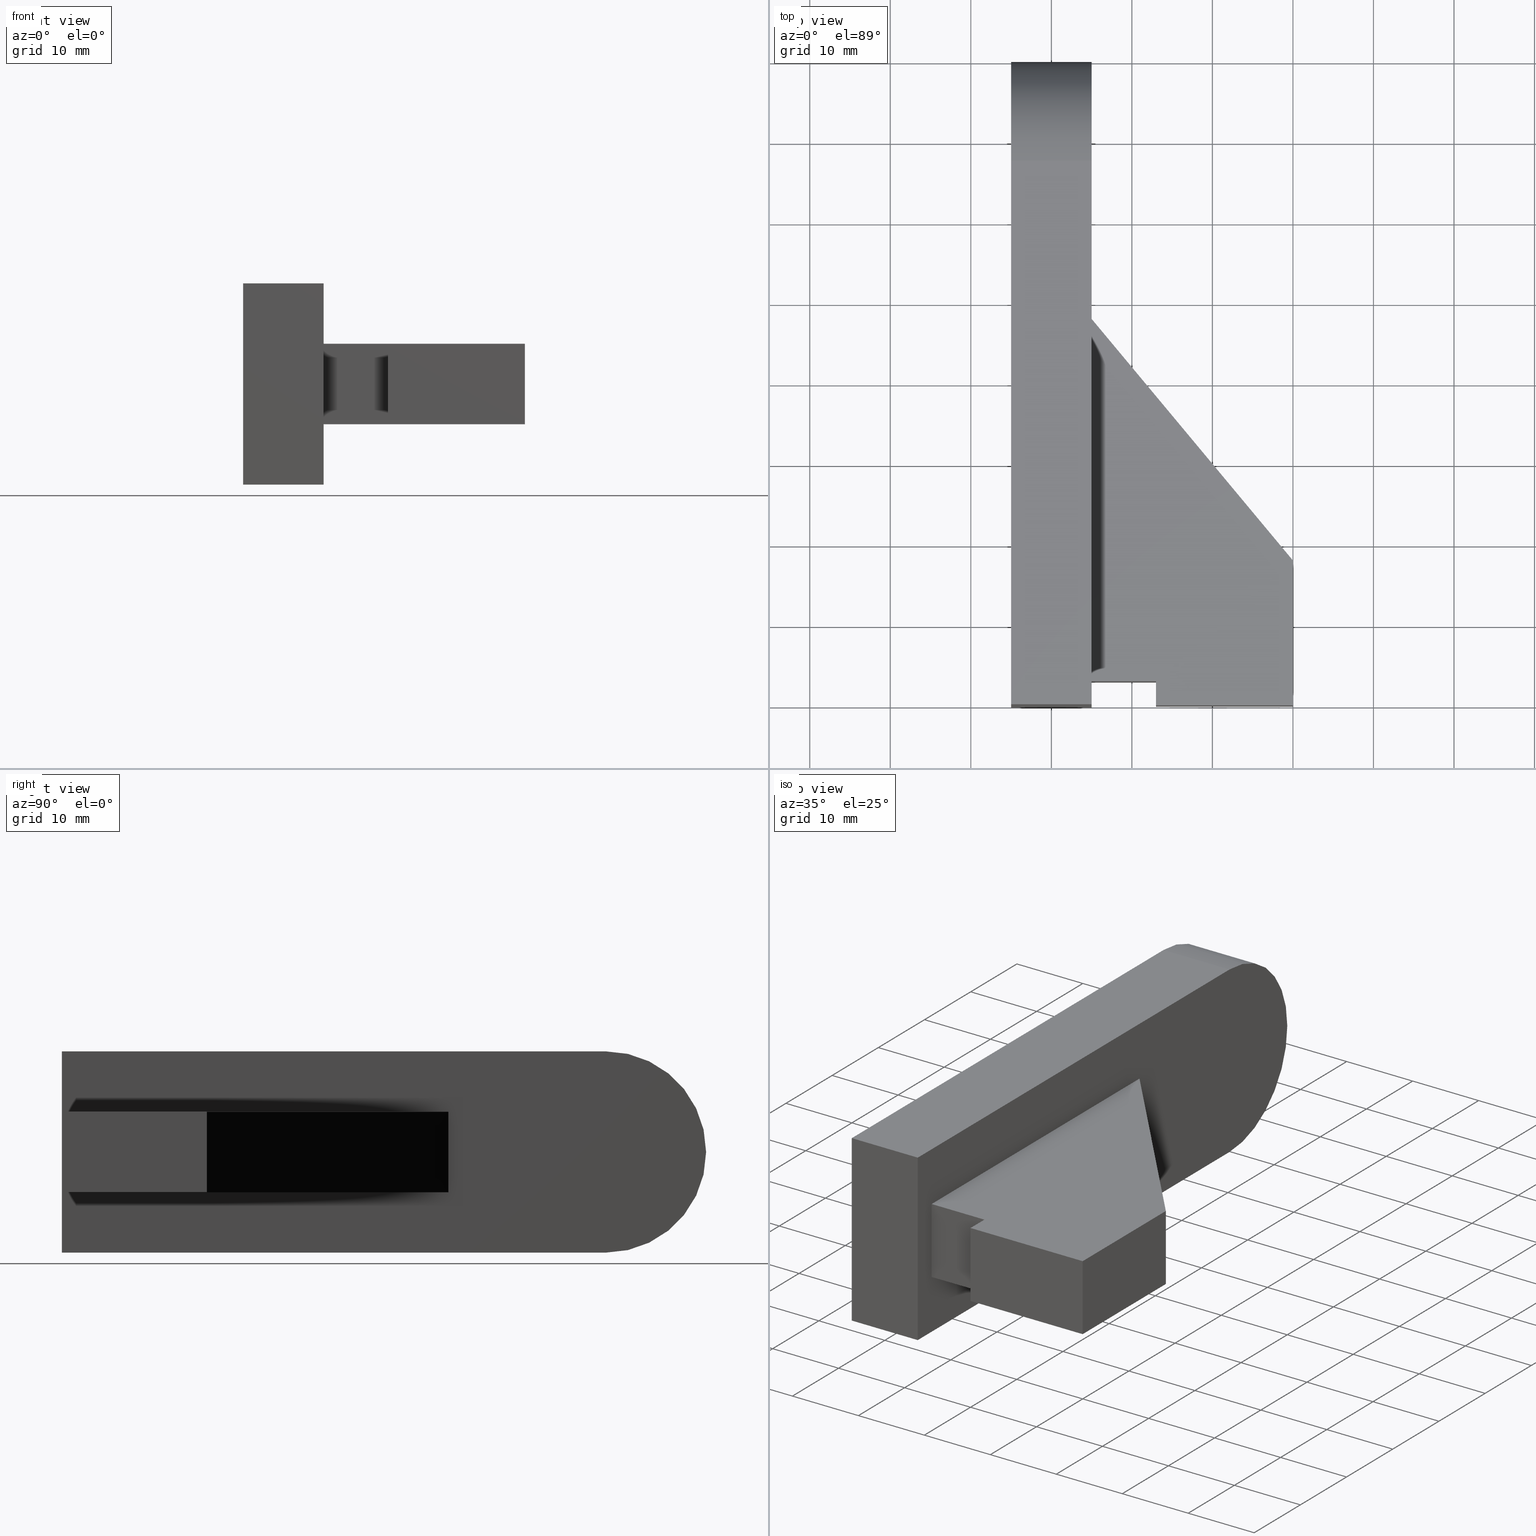
[diagram: canonical four-view strip — front | top / right | iso, engineering-drawing reading convention]
A machine part, canonical four-view strip (front | top / right | iso — engineering-drawing reading convention). The complete STEP part file that produces these views, byte-faithful:
ISO-10303-21;
HEADER;
/* Generated by software containing ST-Developer
 * from STEP Tools, Inc. (www.steptools.com) 
 */

FILE_DESCRIPTION(
/* description */ (''),
/* implementation_level */ '2;1');

FILE_NAME(
/* name */ 
'H:\\Eigene Dateien\\CAD Workspace Vault\\CAD\\E_3_Nocken\\E_3_01_Aufs
chwei\X\DFnocke\\01_Rund\\E_3_01_01_01_00_WKZ-0204.stp',
/* time_stamp */ '2024-05-16T11:15:21+02:00',
/* author */ ('dfischer'),
/* organization */ (''),
/* preprocessor_version */ 'ST-DEVELOPER v18.1',
/* originating_system */ 'Autodesk Inventor 2021',
/* authorisation */ '');

FILE_SCHEMA (('AUTOMOTIVE_DESIGN { 1 0 10303 214 3 1 1 }'));
ENDSEC;

DATA;
#10=MECHANICAL_DESIGN_GEOMETRIC_PRESENTATION_REPRESENTATION('',(#14,#15,
#16),#401);
#11=SHAPE_REPRESENTATION_RELATIONSHIP('SRR','None',#408,#12);
#12=ADVANCED_BREP_SHAPE_REPRESENTATION('',(#13),#400);
#13=MANIFOLD_SOLID_BREP('Volumenk\X\F6rper1',#239);
#14=STYLED_ITEM('',(#418),#230);
#15=STYLED_ITEM('',(#417),#237);
#16=STYLED_ITEM('',(#417),#13);
#17=CYLINDRICAL_SURFACE('',#262,12.5);
#18=FACE_BOUND('',#33,.T.);
#19=FACE_OUTER_BOUND('',#32,.T.);
#20=FACE_OUTER_BOUND('',#34,.T.);
#21=FACE_OUTER_BOUND('',#35,.T.);
#22=FACE_OUTER_BOUND('',#36,.T.);
#23=FACE_OUTER_BOUND('',#37,.T.);
#24=FACE_OUTER_BOUND('',#38,.T.);
#25=FACE_OUTER_BOUND('',#39,.T.);
#26=FACE_OUTER_BOUND('',#40,.T.);
#27=FACE_OUTER_BOUND('',#41,.T.);
#28=FACE_OUTER_BOUND('',#42,.T.);
#29=FACE_OUTER_BOUND('',#43,.T.);
#30=FACE_OUTER_BOUND('',#44,.T.);
#31=FACE_OUTER_BOUND('',#45,.T.);
#32=EDGE_LOOP('',(#154,#155,#156,#157));
#33=EDGE_LOOP('',(#158,#159,#160,#161));
#34=EDGE_LOOP('',(#162,#163,#164,#165));
#35=EDGE_LOOP('',(#166,#167,#168,#169));
#36=EDGE_LOOP('',(#170,#171,#172,#173));
#37=EDGE_LOOP('',(#174,#175,#176,#177));
#38=EDGE_LOOP('',(#178,#179,#180,#181));
#39=EDGE_LOOP('',(#182,#183,#184,#185,#186,#187));
#40=EDGE_LOOP('',(#188,#189,#190,#191));
#41=EDGE_LOOP('',(#192,#193,#194,#195));
#42=EDGE_LOOP('',(#196,#197,#198,#199));
#43=EDGE_LOOP('',(#200,#201,#202,#203));
#44=EDGE_LOOP('',(#204,#205,#206,#207));
#45=EDGE_LOOP('',(#208,#209,#210,#211,#212,#213));
#46=CIRCLE('',#260,12.5);
#47=CIRCLE('',#263,12.5);
#48=LINE('',#338,#76);
#49=LINE('',#340,#77);
#50=LINE('',#343,#78);
#51=LINE('',#346,#79);
#52=LINE('',#348,#80);
#53=LINE('',#350,#81);
#54=LINE('',#351,#82);
#55=LINE('',#355,#83);
#56=LINE('',#356,#84);
#57=LINE('',#357,#85);
#58=LINE('',#361,#86);
#59=LINE('',#364,#87);
#60=LINE('',#365,#88);
#61=LINE('',#367,#89);
#62=LINE('',#372,#90);
#63=LINE('',#374,#91);
#64=LINE('',#376,#92);
#65=LINE('',#377,#93);
#66=LINE('',#378,#94);
#67=LINE('',#382,#95);
#68=LINE('',#383,#96);
#69=LINE('',#384,#97);
#70=LINE('',#386,#98);
#71=LINE('',#389,#99);
#72=LINE('',#390,#100);
#73=LINE('',#393,#101);
#74=LINE('',#394,#102);
#75=LINE('',#396,#103);
#76=VECTOR('',#278,10.);
#77=VECTOR('',#279,10.);
#78=VECTOR('',#282,10.);
#79=VECTOR('',#283,10.);
#80=VECTOR('',#284,10.);
#81=VECTOR('',#285,10.);
#82=VECTOR('',#286,10.);
#83=VECTOR('',#289,10.);
#84=VECTOR('',#290,10.);
#85=VECTOR('',#291,10.);
#86=VECTOR('',#296,10.);
#87=VECTOR('',#299,10.);
#88=VECTOR('',#300,10.);
#89=VECTOR('',#303,10.);
#90=VECTOR('',#308,10.);
#91=VECTOR('',#309,10.);
#92=VECTOR('',#310,10.);
#93=VECTOR('',#311,10.);
#94=VECTOR('',#312,10.);
#95=VECTOR('',#315,10.);
#96=VECTOR('',#316,10.);
#97=VECTOR('',#317,10.);
#98=VECTOR('',#320,10.);
#99=VECTOR('',#323,10.);
#100=VECTOR('',#324,10.);
#101=VECTOR('',#327,10.);
#102=VECTOR('',#328,10.);
#103=VECTOR('',#331,10.);
#104=VERTEX_POINT('',#336);
#105=VERTEX_POINT('',#337);
#106=VERTEX_POINT('',#339);
#107=VERTEX_POINT('',#341);
#108=VERTEX_POINT('',#344);
#109=VERTEX_POINT('',#345);
#110=VERTEX_POINT('',#347);
#111=VERTEX_POINT('',#349);
#112=VERTEX_POINT('',#353);
#113=VERTEX_POINT('',#354);
#114=VERTEX_POINT('',#359);
#115=VERTEX_POINT('',#363);
#116=VERTEX_POINT('',#370);
#117=VERTEX_POINT('',#371);
#118=VERTEX_POINT('',#373);
#119=VERTEX_POINT('',#375);
#120=VERTEX_POINT('',#380);
#121=VERTEX_POINT('',#381);
#122=VERTEX_POINT('',#388);
#123=VERTEX_POINT('',#392);
#124=EDGE_CURVE('',#104,#105,#48,.T.);
#125=EDGE_CURVE('',#106,#104,#49,.T.);
#126=EDGE_CURVE('',#107,#106,#46,.T.);
#127=EDGE_CURVE('',#105,#107,#50,.T.);
#128=EDGE_CURVE('',#108,#109,#51,.T.);
#129=EDGE_CURVE('',#110,#109,#52,.T.);
#130=EDGE_CURVE('',#110,#111,#53,.T.);
#131=EDGE_CURVE('',#111,#108,#54,.T.);
#132=EDGE_CURVE('',#112,#113,#55,.T.);
#133=EDGE_CURVE('',#106,#113,#56,.T.);
#134=EDGE_CURVE('',#104,#112,#57,.T.);
#135=EDGE_CURVE('',#113,#114,#47,.T.);
#136=EDGE_CURVE('',#107,#114,#58,.T.);
#137=EDGE_CURVE('',#114,#115,#59,.T.);
#138=EDGE_CURVE('',#105,#115,#60,.T.);
#139=EDGE_CURVE('',#115,#112,#61,.T.);
#140=EDGE_CURVE('',#116,#117,#62,.T.);
#141=EDGE_CURVE('',#118,#116,#63,.T.);
#142=EDGE_CURVE('',#119,#118,#64,.T.);
#143=EDGE_CURVE('',#109,#119,#65,.T.);
#144=EDGE_CURVE('',#117,#108,#66,.T.);
#145=EDGE_CURVE('',#120,#121,#67,.T.);
#146=EDGE_CURVE('',#121,#119,#68,.T.);
#147=EDGE_CURVE('',#120,#118,#69,.T.);
#148=EDGE_CURVE('',#121,#110,#70,.T.);
#149=EDGE_CURVE('',#111,#122,#71,.T.);
#150=EDGE_CURVE('',#122,#117,#72,.T.);
#151=EDGE_CURVE('',#122,#123,#73,.T.);
#152=EDGE_CURVE('',#116,#123,#74,.T.);
#153=EDGE_CURVE('',#123,#120,#75,.T.);
#154=ORIENTED_EDGE('',*,*,#124,.F.);
#155=ORIENTED_EDGE('',*,*,#125,.F.);
#156=ORIENTED_EDGE('',*,*,#126,.F.);
#157=ORIENTED_EDGE('',*,*,#127,.F.);
#158=ORIENTED_EDGE('',*,*,#128,.T.);
#159=ORIENTED_EDGE('',*,*,#129,.F.);
#160=ORIENTED_EDGE('',*,*,#130,.T.);
#161=ORIENTED_EDGE('',*,*,#131,.T.);
#162=ORIENTED_EDGE('',*,*,#132,.T.);
#163=ORIENTED_EDGE('',*,*,#133,.F.);
#164=ORIENTED_EDGE('',*,*,#125,.T.);
#165=ORIENTED_EDGE('',*,*,#134,.T.);
#166=ORIENTED_EDGE('',*,*,#135,.T.);
#167=ORIENTED_EDGE('',*,*,#136,.F.);
#168=ORIENTED_EDGE('',*,*,#126,.T.);
#169=ORIENTED_EDGE('',*,*,#133,.T.);
#170=ORIENTED_EDGE('',*,*,#137,.T.);
#171=ORIENTED_EDGE('',*,*,#138,.F.);
#172=ORIENTED_EDGE('',*,*,#127,.T.);
#173=ORIENTED_EDGE('',*,*,#136,.T.);
#174=ORIENTED_EDGE('',*,*,#139,.T.);
#175=ORIENTED_EDGE('',*,*,#134,.F.);
#176=ORIENTED_EDGE('',*,*,#124,.T.);
#177=ORIENTED_EDGE('',*,*,#138,.T.);
#178=ORIENTED_EDGE('',*,*,#132,.F.);
#179=ORIENTED_EDGE('',*,*,#139,.F.);
#180=ORIENTED_EDGE('',*,*,#137,.F.);
#181=ORIENTED_EDGE('',*,*,#135,.F.);
#182=ORIENTED_EDGE('',*,*,#140,.F.);
#183=ORIENTED_EDGE('',*,*,#141,.F.);
#184=ORIENTED_EDGE('',*,*,#142,.F.);
#185=ORIENTED_EDGE('',*,*,#143,.F.);
#186=ORIENTED_EDGE('',*,*,#128,.F.);
#187=ORIENTED_EDGE('',*,*,#144,.F.);
#188=ORIENTED_EDGE('',*,*,#145,.T.);
#189=ORIENTED_EDGE('',*,*,#146,.T.);
#190=ORIENTED_EDGE('',*,*,#142,.T.);
#191=ORIENTED_EDGE('',*,*,#147,.F.);
#192=ORIENTED_EDGE('',*,*,#148,.T.);
#193=ORIENTED_EDGE('',*,*,#129,.T.);
#194=ORIENTED_EDGE('',*,*,#143,.T.);
#195=ORIENTED_EDGE('',*,*,#146,.F.);
#196=ORIENTED_EDGE('',*,*,#149,.T.);
#197=ORIENTED_EDGE('',*,*,#150,.T.);
#198=ORIENTED_EDGE('',*,*,#144,.T.);
#199=ORIENTED_EDGE('',*,*,#131,.F.);
#200=ORIENTED_EDGE('',*,*,#151,.T.);
#201=ORIENTED_EDGE('',*,*,#152,.F.);
#202=ORIENTED_EDGE('',*,*,#140,.T.);
#203=ORIENTED_EDGE('',*,*,#150,.F.);
#204=ORIENTED_EDGE('',*,*,#153,.T.);
#205=ORIENTED_EDGE('',*,*,#147,.T.);
#206=ORIENTED_EDGE('',*,*,#141,.T.);
#207=ORIENTED_EDGE('',*,*,#152,.T.);
#208=ORIENTED_EDGE('',*,*,#145,.F.);
#209=ORIENTED_EDGE('',*,*,#153,.F.);
#210=ORIENTED_EDGE('',*,*,#151,.F.);
#211=ORIENTED_EDGE('',*,*,#149,.F.);
#212=ORIENTED_EDGE('',*,*,#130,.F.);
#213=ORIENTED_EDGE('',*,*,#148,.F.);
#214=PLANE('',#259);
#215=PLANE('',#261);
#216=PLANE('',#264);
#217=PLANE('',#265);
#218=PLANE('',#266);
#219=PLANE('',#267);
#220=PLANE('',#268);
#221=PLANE('',#269);
#222=PLANE('',#270);
#223=PLANE('',#271);
#224=PLANE('',#272);
#225=PLANE('',#273);
#226=ADVANCED_FACE('',(#19,#18),#214,.T.);
#227=ADVANCED_FACE('',(#20),#215,.T.);
#228=ADVANCED_FACE('',(#21),#17,.T.);
#229=ADVANCED_FACE('',(#22),#216,.T.);
#230=ADVANCED_FACE('',(#23),#217,.T.);
#231=ADVANCED_FACE('',(#24),#218,.F.);
#232=ADVANCED_FACE('',(#25),#219,.F.);
#233=ADVANCED_FACE('',(#26),#220,.T.);
#234=ADVANCED_FACE('',(#27),#221,.T.);
#235=ADVANCED_FACE('',(#28),#222,.T.);
#236=ADVANCED_FACE('',(#29),#223,.T.);
#237=ADVANCED_FACE('',(#30),#224,.T.);
#238=ADVANCED_FACE('',(#31),#225,.T.);
#239=CLOSED_SHELL('',(#226,#227,#228,#229,#230,#231,#232,#233,#234,#235,
#236,#237,#238));
#240=DERIVED_UNIT_ELEMENT(#242,1.);
#241=DERIVED_UNIT_ELEMENT(#403,3.);
#242=(
MASS_UNIT()
NAMED_UNIT(*)
SI_UNIT($,.GRAM.)
);
#243=DERIVED_UNIT((#240,#241));
#244=MEASURE_REPRESENTATION_ITEM('density measure',
POSITIVE_RATIO_MEASURE(8.03),#243);
#245=PROPERTY_DEFINITION_REPRESENTATION(#250,#247);
#246=PROPERTY_DEFINITION_REPRESENTATION(#251,#248);
#247=REPRESENTATION('material name',(#249),#400);
#248=REPRESENTATION('density',(#244),#400);
#249=DESCRIPTIVE_REPRESENTATION_ITEM('1.4301','1.4301');
#250=PROPERTY_DEFINITION('material property','material name',#410);
#251=PROPERTY_DEFINITION('material property','density of part',#410);
#252=DATE_TIME_ROLE('creation_date');
#253=APPLIED_DATE_AND_TIME_ASSIGNMENT(#254,#252,(#410));
#254=DATE_AND_TIME(#255,#256);
#255=CALENDAR_DATE(2011,18,10);
#256=LOCAL_TIME(0,0,0.,#257);
#257=COORDINATED_UNIVERSAL_TIME_OFFSET(0,0,.BEHIND.);
#258=AXIS2_PLACEMENT_3D('placement',#334,#274,#275);
#259=AXIS2_PLACEMENT_3D('',#335,#276,#277);
#260=AXIS2_PLACEMENT_3D('',#342,#280,#281);
#261=AXIS2_PLACEMENT_3D('',#352,#287,#288);
#262=AXIS2_PLACEMENT_3D('',#358,#292,#293);
#263=AXIS2_PLACEMENT_3D('',#360,#294,#295);
#264=AXIS2_PLACEMENT_3D('',#362,#297,#298);
#265=AXIS2_PLACEMENT_3D('',#366,#301,#302);
#266=AXIS2_PLACEMENT_3D('',#368,#304,#305);
#267=AXIS2_PLACEMENT_3D('',#369,#306,#307);
#268=AXIS2_PLACEMENT_3D('',#379,#313,#314);
#269=AXIS2_PLACEMENT_3D('',#385,#318,#319);
#270=AXIS2_PLACEMENT_3D('',#387,#321,#322);
#271=AXIS2_PLACEMENT_3D('',#391,#325,#326);
#272=AXIS2_PLACEMENT_3D('',#395,#329,#330);
#273=AXIS2_PLACEMENT_3D('',#397,#332,#333);
#274=DIRECTION('axis',(0.,0.,1.));
#275=DIRECTION('refdir',(1.,0.,0.));
#276=DIRECTION('center_axis',(1.,0.,0.));
#277=DIRECTION('ref_axis',(0.,0.,-1.));
#278=DIRECTION('',(0.,0.,1.));
#279=DIRECTION('',(0.,-1.,-1.97372982155583E-16));
#280=DIRECTION('center_axis',(-1.,0.,0.));
#281=DIRECTION('ref_axis',(0.,0.,1.));
#282=DIRECTION('',(0.,1.,-1.97372982155583E-16));
#283=DIRECTION('',(0.,-1.,0.));
#284=DIRECTION('',(0.,0.,-1.));
#285=DIRECTION('',(0.,1.,0.));
#286=DIRECTION('',(0.,0.,-1.));
#287=DIRECTION('center_axis',(0.,1.97372982155583E-16,-1.));
#288=DIRECTION('ref_axis',(-1.,0.,0.));
#289=DIRECTION('',(0.,1.,1.97372982155583E-16));
#290=DIRECTION('',(-1.,0.,0.));
#291=DIRECTION('',(-1.,0.,0.));
#292=DIRECTION('center_axis',(-1.,0.,0.));
#293=DIRECTION('ref_axis',(0.,0.,1.));
#294=DIRECTION('center_axis',(1.,0.,0.));
#295=DIRECTION('ref_axis',(0.,0.,1.));
#296=DIRECTION('',(-1.,0.,0.));
#297=DIRECTION('center_axis',(0.,1.97372982155583E-16,1.));
#298=DIRECTION('ref_axis',(1.,0.,0.));
#299=DIRECTION('',(0.,-1.,1.97372982155583E-16));
#300=DIRECTION('',(-1.,0.,0.));
#301=DIRECTION('center_axis',(0.,-1.,0.));
#302=DIRECTION('ref_axis',(0.,0.,-1.));
#303=DIRECTION('',(0.,0.,-1.));
#304=DIRECTION('center_axis',(1.,0.,0.));
#305=DIRECTION('ref_axis',(0.,0.,-1.));
#306=DIRECTION('center_axis',(0.,0.,1.));
#307=DIRECTION('ref_axis',(1.,0.,0.));
#308=DIRECTION('',(-1.85037170770859E-16,1.,0.));
#309=DIRECTION('',(1.,1.72087780284837E-16,0.));
#310=DIRECTION('',(0.,-1.,0.));
#311=DIRECTION('',(1.,2.77555756156289E-16,0.));
#312=DIRECTION('',(-0.64018439966448,0.768221279597376,0.));
#313=DIRECTION('center_axis',(-1.,0.,0.));
#314=DIRECTION('ref_axis',(0.,0.,1.));
#315=DIRECTION('',(0.,1.,0.));
#316=DIRECTION('',(0.,0.,-1.));
#317=DIRECTION('',(0.,0.,-1.));
#318=DIRECTION('center_axis',(2.77555756156289E-16,-1.,0.));
#319=DIRECTION('ref_axis',(0.,0.,-1.));
#320=DIRECTION('',(-1.,-2.77555756156289E-16,0.));
#321=DIRECTION('center_axis',(0.768221279597376,0.64018439966448,0.));
#322=DIRECTION('ref_axis',(0.,0.,-1.));
#323=DIRECTION('',(0.64018439966448,-0.768221279597376,0.));
#324=DIRECTION('',(0.,0.,-1.));
#325=DIRECTION('center_axis',(1.,1.85037170770859E-16,0.));
#326=DIRECTION('ref_axis',(0.,0.,-1.));
#327=DIRECTION('',(1.85037170770859E-16,-1.,0.));
#328=DIRECTION('',(0.,0.,1.));
#329=DIRECTION('center_axis',(1.72087780284837E-16,-1.,0.));
#330=DIRECTION('ref_axis',(0.,0.,-1.));
#331=DIRECTION('',(-1.,-1.72087780284837E-16,0.));
#332=DIRECTION('center_axis',(0.,0.,1.));
#333=DIRECTION('ref_axis',(1.,0.,0.));
#334=CARTESIAN_POINT('',(0.,0.,0.));
#335=CARTESIAN_POINT('Origin',(-25.,37.7015669275063,1.66533453693773E-15));
#336=CARTESIAN_POINT('',(-25.,2.22044604925031E-15,-12.5));
#337=CARTESIAN_POINT('',(-25.,2.22044604925031E-15,12.5));
#338=CARTESIAN_POINT('',(-25.,2.22044604925031E-15,-12.5));
#339=CARTESIAN_POINT('',(-25.,67.5,-12.5));
#340=CARTESIAN_POINT('',(-25.,67.5,-12.5));
#341=CARTESIAN_POINT('',(-25.,67.5,12.5));
#342=CARTESIAN_POINT('Origin',(-25.,67.5,-4.44089209850063E-15));
#343=CARTESIAN_POINT('',(-25.,2.22044604925031E-15,12.5));
#344=CARTESIAN_POINT('',(-25.,48.,-5.));
#345=CARTESIAN_POINT('',(-25.,3.,-5.));
#346=CARTESIAN_POINT('',(-25.,3.,-5.));
#347=CARTESIAN_POINT('',(-25.,3.,5.));
#348=CARTESIAN_POINT('',(-25.,3.,0.));
#349=CARTESIAN_POINT('',(-25.,48.,5.));
#350=CARTESIAN_POINT('',(-25.,3.,5.));
#351=CARTESIAN_POINT('',(-25.,48.,0.));
#352=CARTESIAN_POINT('Origin',(-25.,2.22044604925031E-15,-12.5));
#353=CARTESIAN_POINT('',(-35.,2.22044604925031E-15,-12.5));
#354=CARTESIAN_POINT('',(-35.,67.5,-12.5));
#355=CARTESIAN_POINT('',(-35.,67.5,-12.5));
#356=CARTESIAN_POINT('',(-25.,67.5,-12.5));
#357=CARTESIAN_POINT('',(-25.,2.22044604925031E-15,-12.5));
#358=CARTESIAN_POINT('Origin',(-25.,67.5,-4.44089209850063E-15));
#359=CARTESIAN_POINT('',(-35.,67.5,12.5));
#360=CARTESIAN_POINT('Origin',(-35.,67.5,-4.44089209850063E-15));
#361=CARTESIAN_POINT('',(-25.,67.5,12.5));
#362=CARTESIAN_POINT('Origin',(-25.,67.5,12.5));
#363=CARTESIAN_POINT('',(-35.,2.22044604925031E-15,12.5));
#364=CARTESIAN_POINT('',(-35.,2.22044604925031E-15,12.5));
#365=CARTESIAN_POINT('',(-25.,2.22044604925031E-15,12.5));
#366=CARTESIAN_POINT('Origin',(-25.,2.22044604925031E-15,12.5));
#367=CARTESIAN_POINT('',(-35.,2.22044604925031E-15,-12.5));
#368=CARTESIAN_POINT('Origin',(-35.,37.7015669275063,1.11022302462516E-15));
#369=CARTESIAN_POINT('Origin',(-15.1989360300154,20.1973547294143,-5.));
#370=CARTESIAN_POINT('',(2.22044604925031E-15,-4.05176809033237E-16,-5.));
#371=CARTESIAN_POINT('',(-1.11022302462516E-15,18.,-5.));
#372=CARTESIAN_POINT('',(-1.11022302462516E-15,18.,-5.));
#373=CARTESIAN_POINT('',(-17.,-3.33066907387547E-15,-5.));
#374=CARTESIAN_POINT('',(2.22044604925031E-15,-4.05176809033237E-16,-5.));
#375=CARTESIAN_POINT('',(-17.,3.,-5.));
#376=CARTESIAN_POINT('',(-17.,-3.33066907387547E-15,-5.));
#377=CARTESIAN_POINT('',(-17.,3.,-5.));
#378=CARTESIAN_POINT('',(-25.,48.,-5.));
#379=CARTESIAN_POINT('Origin',(-17.,-3.33066907387547E-15,0.));
#380=CARTESIAN_POINT('',(-17.,-3.33066907387547E-15,5.));
#381=CARTESIAN_POINT('',(-17.,3.,5.));
#382=CARTESIAN_POINT('',(-17.,-3.33066907387547E-15,5.));
#383=CARTESIAN_POINT('',(-17.,3.,0.));
#384=CARTESIAN_POINT('',(-17.,-3.33066907387547E-15,0.));
#385=CARTESIAN_POINT('Origin',(-17.,3.,0.));
#386=CARTESIAN_POINT('',(-17.,3.,5.));
#387=CARTESIAN_POINT('Origin',(-25.,48.,0.));
#388=CARTESIAN_POINT('',(-1.11022302462516E-15,18.,5.));
#389=CARTESIAN_POINT('',(-25.,48.,5.));
#390=CARTESIAN_POINT('',(-1.11022302462516E-15,18.,0.));
#391=CARTESIAN_POINT('Origin',(-1.11022302462516E-15,18.,0.));
#392=CARTESIAN_POINT('',(2.22044604925031E-15,-4.05176809033237E-16,5.));
#393=CARTESIAN_POINT('',(-1.11022302462516E-15,18.,5.));
#394=CARTESIAN_POINT('',(2.22044604925031E-15,-4.05176809033237E-16,0.));
#395=CARTESIAN_POINT('Origin',(2.22044604925031E-15,-4.05176809033237E-16,
0.));
#396=CARTESIAN_POINT('',(2.22044604925031E-15,-4.05176809033237E-16,5.));
#397=CARTESIAN_POINT('Origin',(-15.1989360300154,20.1973547294143,5.));
#398=UNCERTAINTY_MEASURE_WITH_UNIT(LENGTH_MEASURE(0.01),#402,
'DISTANCE_ACCURACY_VALUE',
'Maximum model space distance between geometric entities at asserted c
onnectivities');
#399=UNCERTAINTY_MEASURE_WITH_UNIT(LENGTH_MEASURE(0.01),#402,
'DISTANCE_ACCURACY_VALUE',
'Maximum model space distance between geometric entities at asserted c
onnectivities');
#400=(
GEOMETRIC_REPRESENTATION_CONTEXT(3)
GLOBAL_UNCERTAINTY_ASSIGNED_CONTEXT((#398))
GLOBAL_UNIT_ASSIGNED_CONTEXT((#402,#404,#405))
REPRESENTATION_CONTEXT('','3D')
);
#401=(
GEOMETRIC_REPRESENTATION_CONTEXT(3)
GLOBAL_UNCERTAINTY_ASSIGNED_CONTEXT((#399))
GLOBAL_UNIT_ASSIGNED_CONTEXT((#402,#404,#405))
REPRESENTATION_CONTEXT('','3D')
);
#402=(
LENGTH_UNIT()
NAMED_UNIT(*)
SI_UNIT(.MILLI.,.METRE.)
);
#403=(
LENGTH_UNIT()
NAMED_UNIT(*)
SI_UNIT(.CENTI.,.METRE.)
);
#404=(
NAMED_UNIT(*)
PLANE_ANGLE_UNIT()
SI_UNIT($,.RADIAN.)
);
#405=(
NAMED_UNIT(*)
SI_UNIT($,.STERADIAN.)
SOLID_ANGLE_UNIT()
);
#406=SHAPE_DEFINITION_REPRESENTATION(#407,#408);
#407=PRODUCT_DEFINITION_SHAPE('',$,#410);
#408=SHAPE_REPRESENTATION('',(#258),#400);
#409=PRODUCT_DEFINITION_CONTEXT('part definition',#414,'design');
#410=PRODUCT_DEFINITION('WKZ-0204','E_3_01_01_01_00_WKZ-0204',#411,#409);
#411=PRODUCT_DEFINITION_FORMATION('',$,#416);
#412=PRODUCT_RELATED_PRODUCT_CATEGORY('E_3_01_01_01_00_WKZ-0204',
'E_3_01_01_01_00_WKZ-0204',(#416));
#413=APPLICATION_PROTOCOL_DEFINITION('international standard',
'automotive_design',2009,#414);
#414=APPLICATION_CONTEXT(
'Core Data for Automotive Mechanical Design Process');
#415=PRODUCT_CONTEXT('part definition',#414,'mechanical');
#416=PRODUCT('WKZ-0204','E_3_01_01_01_00_WKZ-0204',$,(#415));
#417=PRESENTATION_STYLE_ASSIGNMENT((#419));
#418=PRESENTATION_STYLE_ASSIGNMENT((#420));
#419=SURFACE_STYLE_USAGE(.BOTH.,#423);
#420=SURFACE_STYLE_USAGE(.BOTH.,#424);
#421=SURFACE_STYLE_RENDERING_WITH_PROPERTIES($,#431,(#422));
#422=SURFACE_STYLE_TRANSPARENT(0.);
#423=SURFACE_SIDE_STYLE('',(#425,#421));
#424=SURFACE_SIDE_STYLE('',(#426));
#425=SURFACE_STYLE_FILL_AREA(#427);
#426=SURFACE_STYLE_FILL_AREA(#428);
#427=FILL_AREA_STYLE('',(#429));
#428=FILL_AREA_STYLE('',(#430));
#429=FILL_AREA_STYLE_COLOUR('',#431);
#430=FILL_AREA_STYLE_COLOUR('',#432);
#431=COLOUR_RGB('',0.92156862745098,0.92156862745098,0.92156862745098);
#432=COLOUR_RGB('',0.16078431372549,0.16078431372549,0.16078431372549);
ENDSEC;
END-ISO-10303-21;
